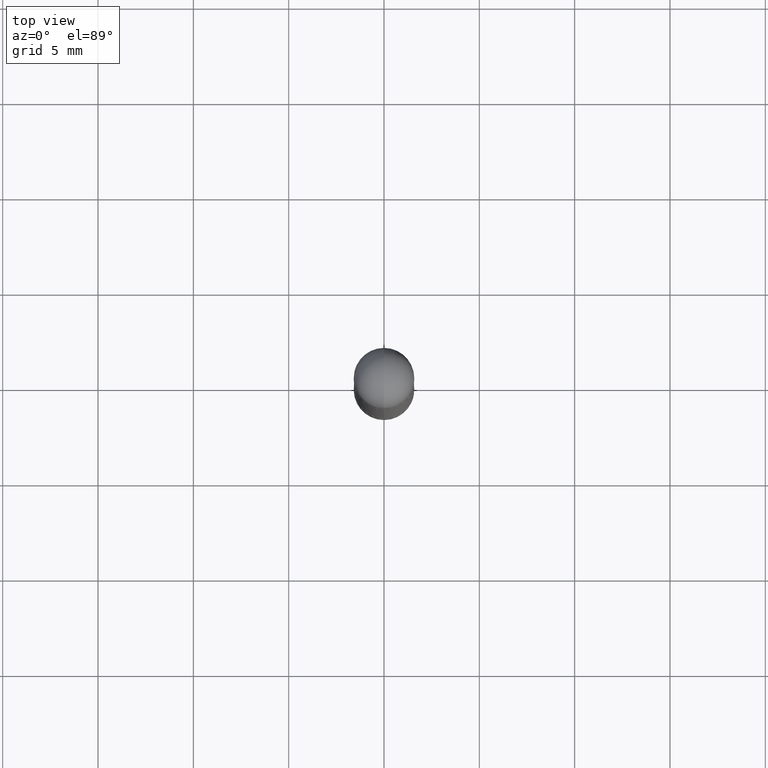
[diagram: clean part render]
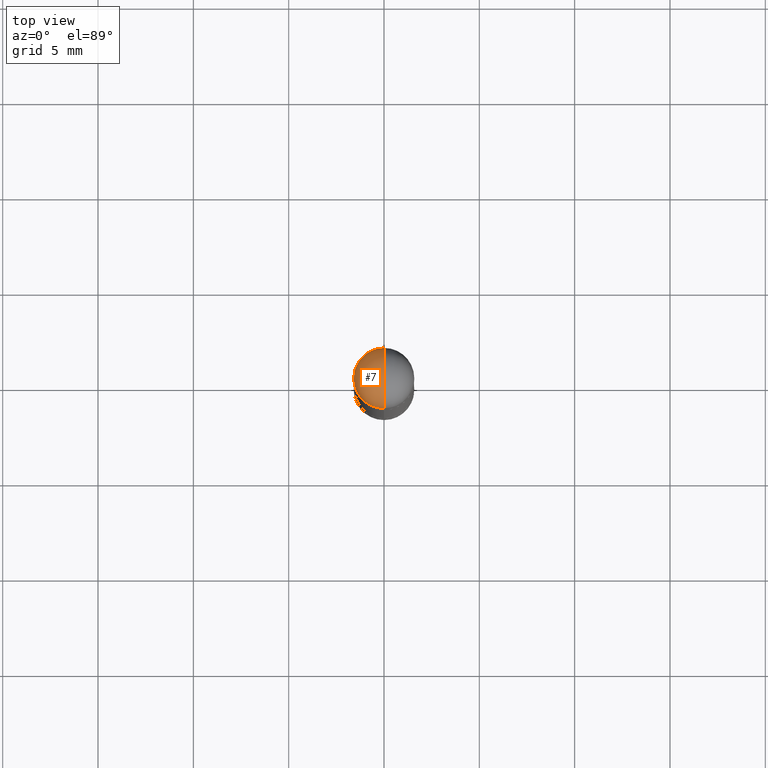
[diagram: same view with one face highlighted and labeled with its STEP entity id]
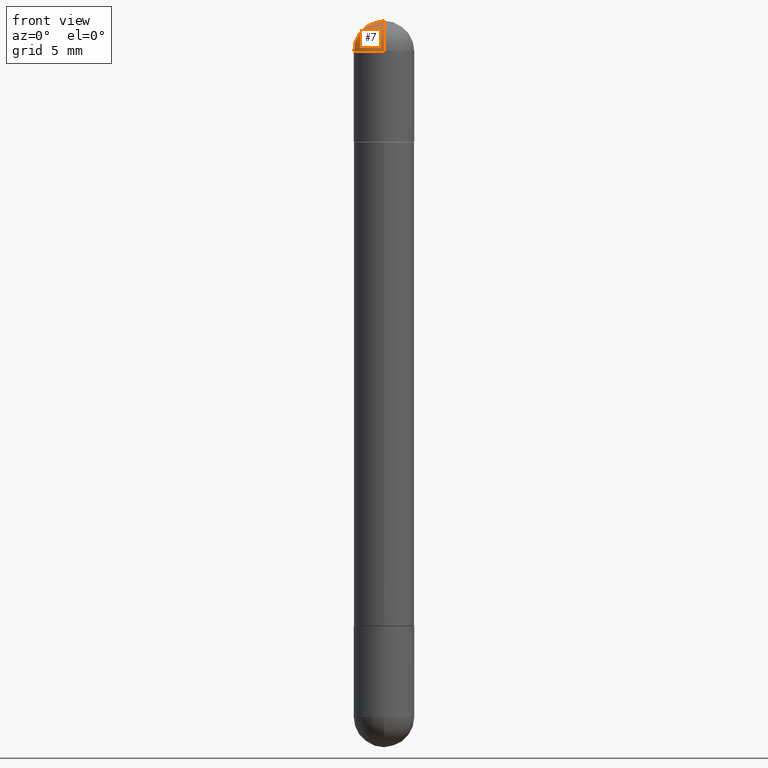
[diagram: same view with one face highlighted and labeled with its STEP entity id]
A machine part, top view. The second image highlights one B-rep face of the part: STEP entity #7.
A second angle (front view) of the same face is appended — the face is thin or edge-on in the first view.
In plain terms, the highlighted spherical surface has radius 1.5875 mm.
Its self-contained STEP definition (entity closure, byte-faithful):
#1 = DIRECTION ( 'NONE',  ( 1.000000000000000000, -6.982962677686261189E-15, 0.000000000000000000 ) ) ;
#3 = ORIENTED_EDGE ( 'NONE', *, *, #719, .T. ) ;
#7 = ADVANCED_FACE ( 'NONE', ( #225 ), #217, .T. ) ;
#12 = EDGE_LOOP ( 'NONE', ( #341, #492, #801, #3 ) ) ;
#64 = CARTESIAN_POINT ( 'NONE',  ( 3.184241630977248732E-29, -5.493186792727072638E-15, -0.06250000000000022204 ) ) ;
#109 = DIRECTION ( 'NONE',  ( 2.445468806185136597E-29, -3.491481338843145583E-15, 1.000000000000000000 ) ) ;
#117 = CARTESIAN_POINT ( 'NONE',  ( 3.515361408891134418E-29, -5.019004424587023131E-15, -0.06250000000000022204 ) ) ;
#125 = DIRECTION ( 'NONE',  ( 6.860497997771530774E-15, 1.000000000000000000, 0.000000000000000000 ) ) ;
#170 = CARTESIAN_POINT ( 'NONE',  ( 3.515361408891134418E-29, -5.019004424587023131E-15, -0.06250000000000022204 ) ) ;
#179 = AXIS2_PLACEMENT_3D ( 'NONE', #64, #323, #327 ) ;
#217 = SPHERICAL_SURFACE ( 'NONE', #531, 0.06250000000000022204 ) ;
#225 = FACE_OUTER_BOUND ( 'NONE', #12, .T. ) ;
#246 = VERTEX_POINT ( 'NONE', #357 ) ;
#289 = CARTESIAN_POINT ( 'NONE',  ( 3.339755826017505569E-29, -5.707577355157435366E-15, 0.000000000000000000 ) ) ;
#307 = DIRECTION ( 'NONE',  ( 1.000000000000000000, -6.982962677686261189E-15, 0.000000000000000000 ) ) ;
#308 = CIRCLE ( 'NONE', #179, 0.06250000000000022204 ) ;
#323 = DIRECTION ( 'NONE',  ( -1.000000000000000000, 6.982962677686265922E-15, 4.883557194083112340E-29 ) ) ;
#327 = DIRECTION ( 'NONE',  ( -6.982962677686266711E-15, -1.000000000000000000, 0.000000000000000000 ) ) ;
#341 = ORIENTED_EDGE ( 'NONE', *, *, #744, .F. ) ;
#345 = EDGE_CURVE ( 'NONE', #598, #246, #308, .T. ) ;
#357 = CARTESIAN_POINT ( 'NONE',  ( 4.364351673554259849E-16, 0.06249999999999485828, -0.06250000000000000000 ) ) ;
#431 = DIRECTION ( 'NONE',  ( 1.000000000000000000, -6.860497997771530774E-15, -4.840798879624142912E-29 ) ) ;
#443 = VERTEX_POINT ( 'NONE', #702 ) ;
#492 = ORIENTED_EDGE ( 'NONE', *, *, #345, .T. ) ;
#518 = AXIS2_PLACEMENT_3D ( 'NONE', #803, #431, #125 ) ;
#531 = AXIS2_PLACEMENT_3D ( 'NONE', #735, #538, #659 ) ;
#538 = DIRECTION ( 'NONE',  ( 1.000000000000000000, -6.982962677686266711E-15, -4.883557194083112901E-29 ) ) ;
#542 = AXIS2_PLACEMENT_3D ( 'NONE', #170, #109, #1 ) ;
#563 = CIRCLE ( 'NONE', #518, 0.06250000000000022204 ) ;
#578 = CIRCLE ( 'NONE', #542, 0.06250000000000001388 ) ;
#598 = VERTEX_POINT ( 'NONE', #289 ) ;
#649 = AXIS2_PLACEMENT_3D ( 'NONE', #117, #675, #307 ) ;
#659 = DIRECTION ( 'NONE',  ( 6.982962677686266711E-15, 1.000000000000000000, 3.551402391763529759E-15 ) ) ;
#675 = DIRECTION ( 'NONE',  ( 2.445468806185136597E-29, -3.491481338843145583E-15, 1.000000000000000000 ) ) ;
#702 = CARTESIAN_POINT ( 'NONE',  ( -4.287811248606879849E-16, -0.06250000000000537070, -0.06250000000000044409 ) ) ;
#712 = VERTEX_POINT ( 'NONE', #747 ) ;
#719 = EDGE_CURVE ( 'NONE', #712, #443, #578, .T. ) ;
#735 = CARTESIAN_POINT ( 'NONE',  ( 3.184241630977248732E-29, -5.493186792727072638E-15, -0.06250000000000022204 ) ) ;
#744 = EDGE_CURVE ( 'NONE', #598, #443, #563, .T. ) ;
#747 = CARTESIAN_POINT ( 'NONE',  ( -0.06250000000000001388, -4.262896924209757473E-15, -0.06250000000000022204 ) ) ;
#748 = CIRCLE ( 'NONE', #649, 0.06250000000000001388 ) ;
#788 = EDGE_CURVE ( 'NONE', #246, #712, #748, .T. ) ;
#801 = ORIENTED_EDGE ( 'NONE', *, *, #788, .T. ) ;
#803 = CARTESIAN_POINT ( 'NONE',  ( 3.184241630977248732E-29, -5.493186792727072638E-15, -0.06250000000000022204 ) ) ;